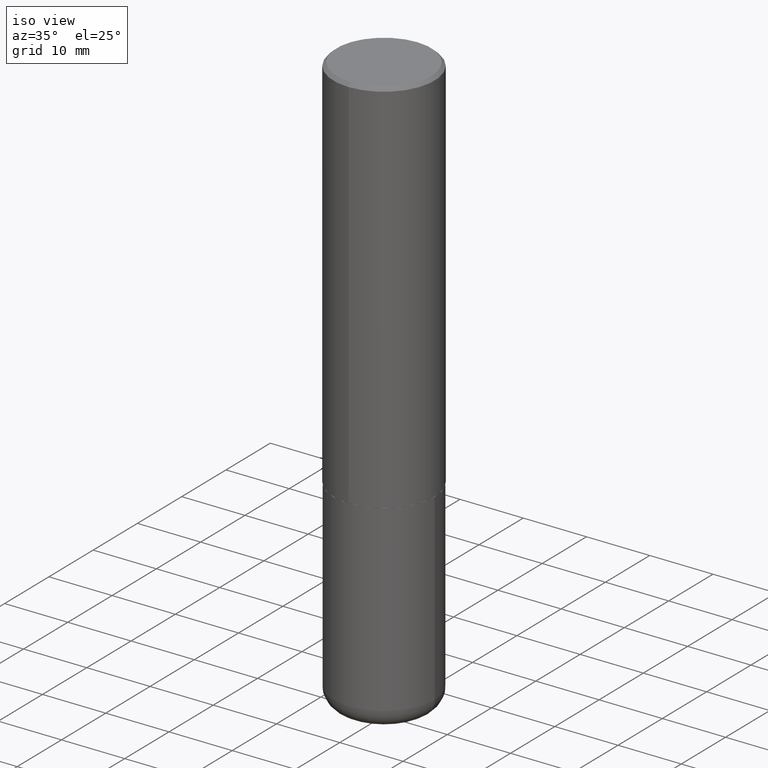
[diagram: clean part render]
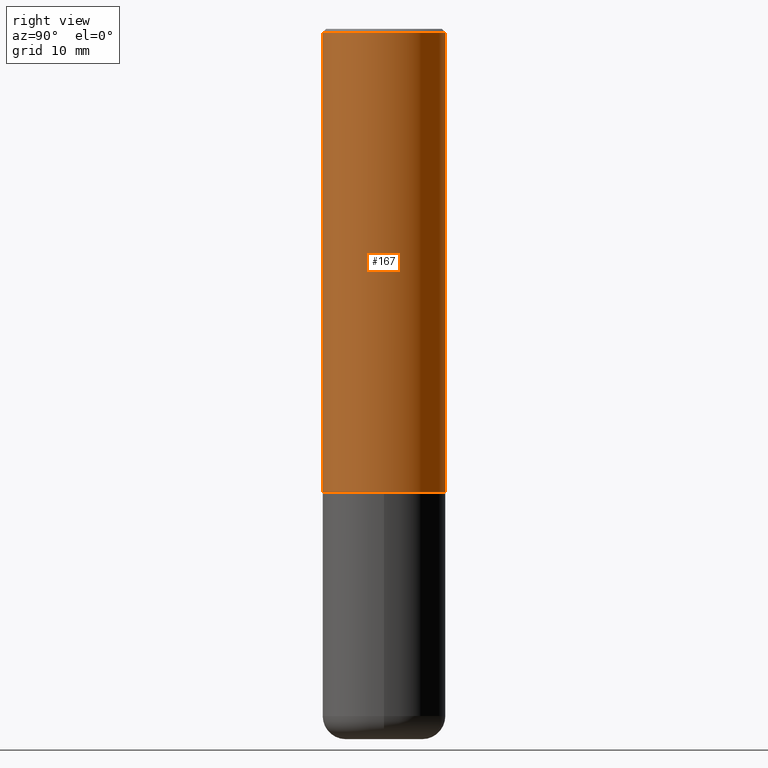
[diagram: tour spotlight — one face highlighted and labeled with its STEP entity id]
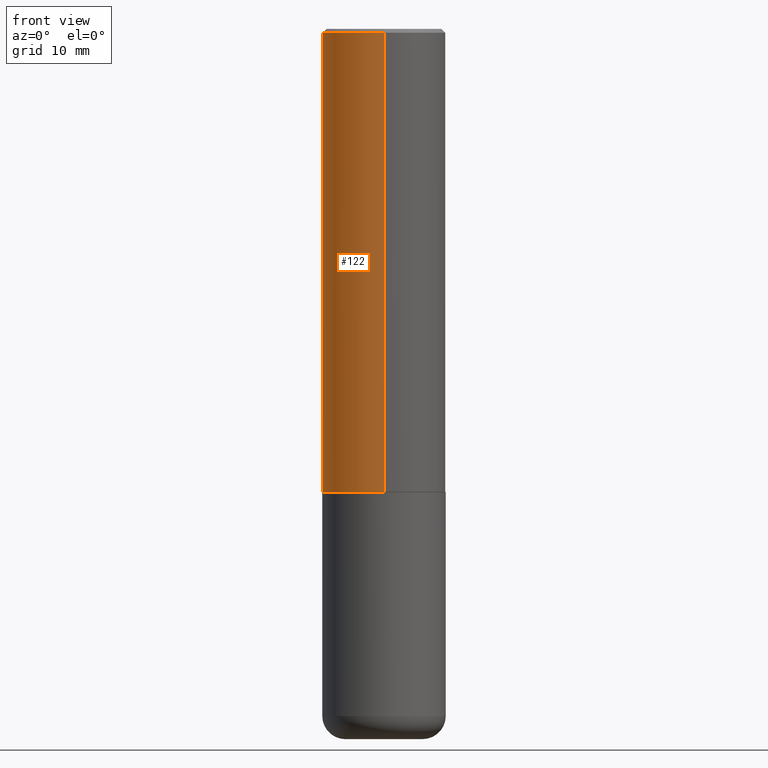
[diagram: tour spotlight — one face highlighted and labeled with its STEP entity id]
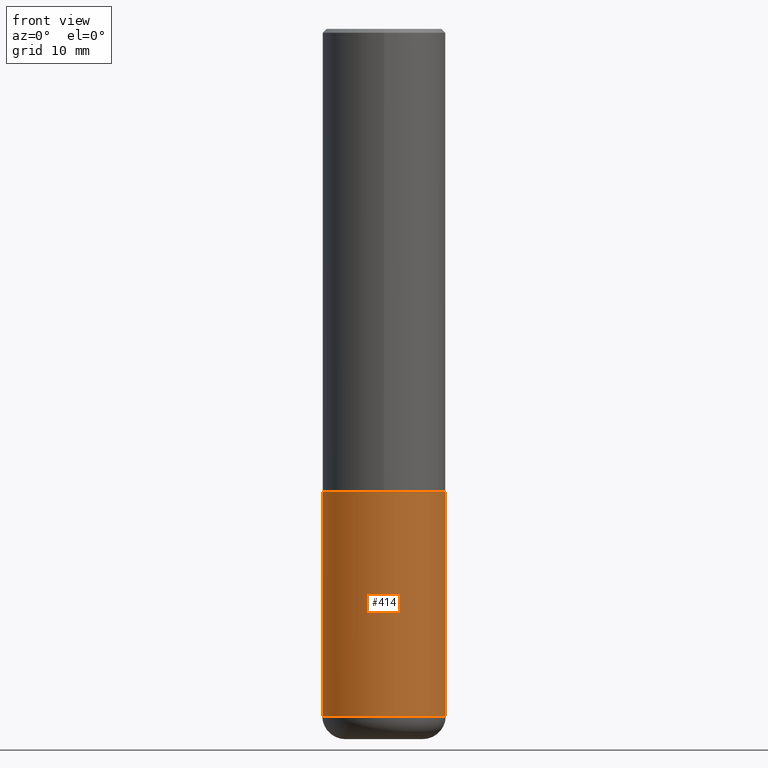
[diagram: tour spotlight — one face highlighted and labeled with its STEP entity id]
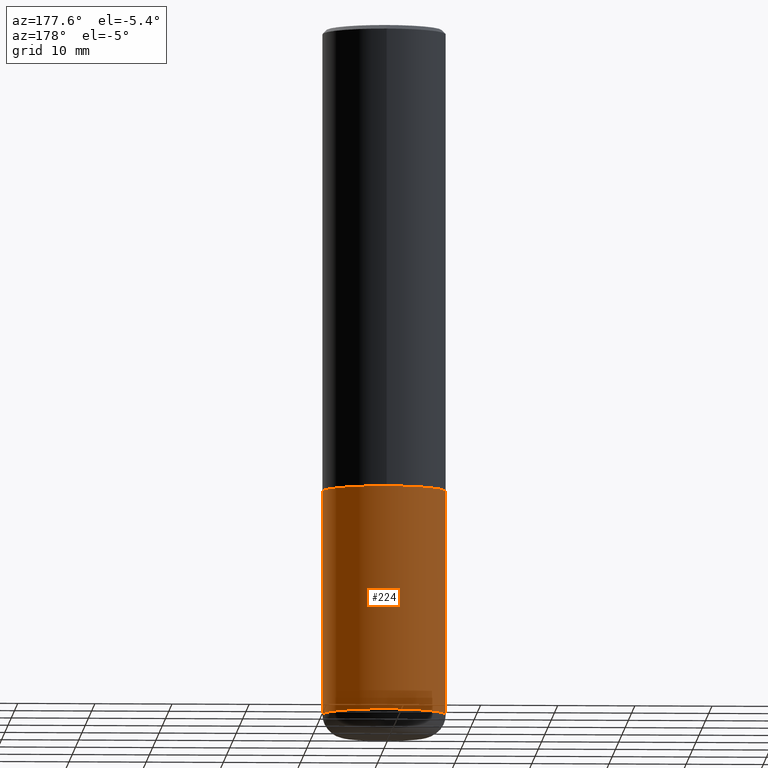
[diagram: tour spotlight — one face highlighted and labeled with its STEP entity id]
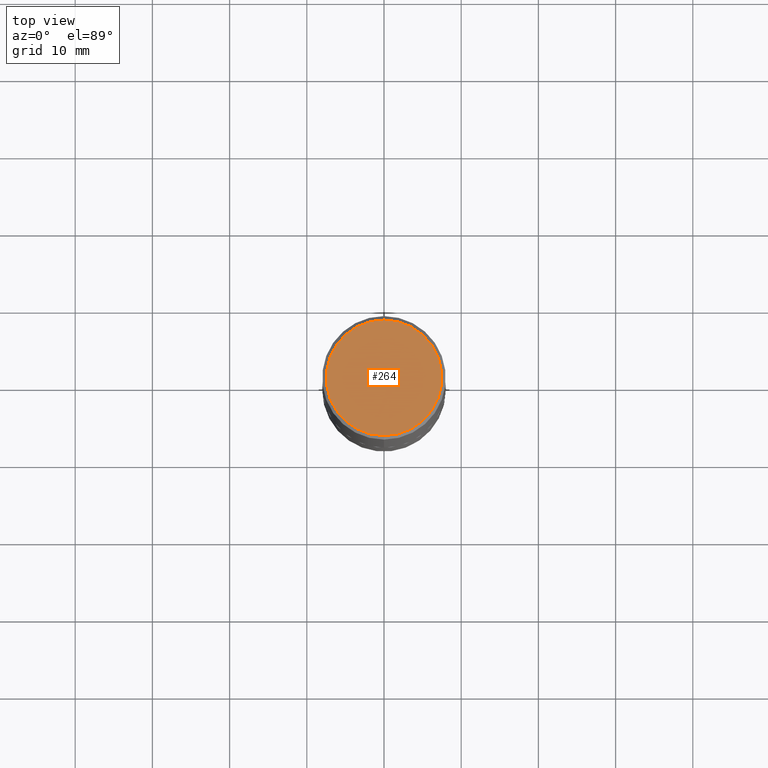
[diagram: tour spotlight — one face highlighted and labeled with its STEP entity id]
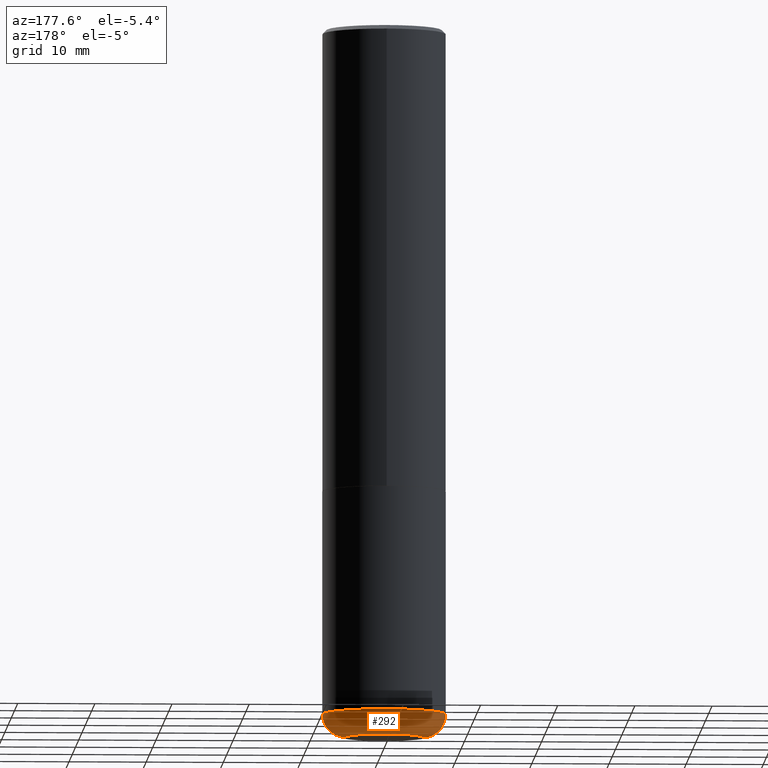
[diagram: tour spotlight — one face highlighted and labeled with its STEP entity id]
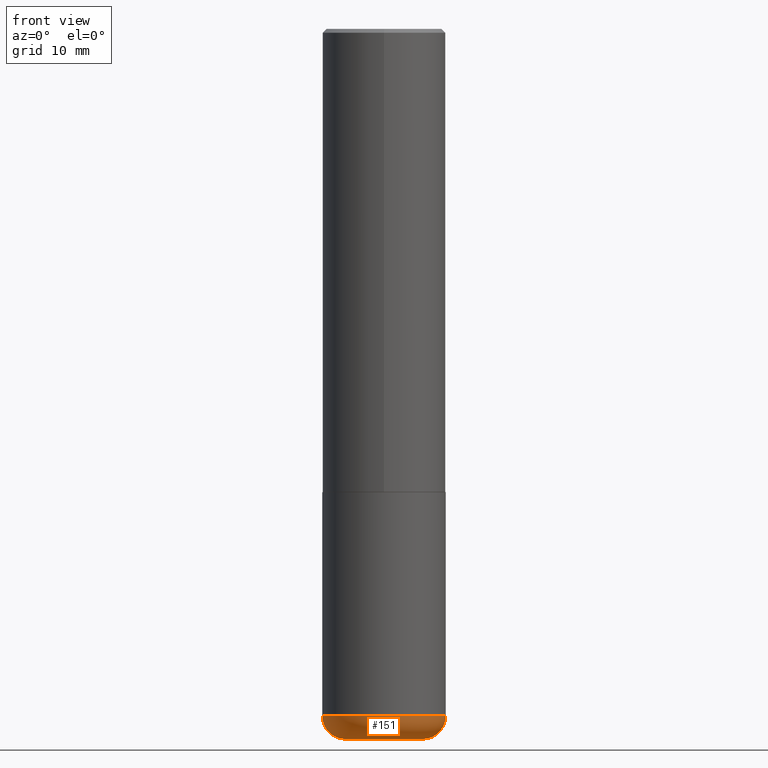
[diagram: tour spotlight — one face highlighted and labeled with its STEP entity id]
A machine part: a face-by-face anatomy tour. The part has 14 B-rep faces; the first image is the clean iso view, then the 7 largest visible faces are spotlighted one at a time (largest first), each with its STEP entity span.

Face 1 — right view, entity #167. In plain terms, the highlighted cylindrical surface (partial cylindrical patch) has radius 7.9997 mm, axis along (-0, 0, 1).
Definition (entity closure, byte-faithful):
#1 = ORIENTED_EDGE ( 'NONE', *, *, #219, .T. ) ;
#5 = DIRECTION ( 'NONE',  ( -2.446834136232167657E-29, 3.489526108506037109E-15, 1.000000000000000000 ) ) ;
#29 = EDGE_LOOP ( 'NONE', ( #1, #327, #72, #163 ) ) ;
#39 = VECTOR ( 'NONE', #5, 39.37007874015748143 ) ;
#42 = DIRECTION ( 'NONE',  ( -2.446834136232167657E-29, 3.489526108506037109E-15, 1.000000000000000000 ) ) ;
#46 = DIRECTION ( 'NONE',  ( -6.982962677686265922E-15, -1.000000000000000000, 3.469564049740290009E-15 ) ) ;
#47 = EDGE_CURVE ( 'NONE', #299, #357, #418, .T. ) ;
#48 = LINE ( 'NONE', #138, #134 ) ;
#61 = CARTESIAN_POINT ( 'NONE',  ( 2.237854346276465567E-15, 0.3149499999999920141, -2.361200000000000632 ) ) ;
#72 = ORIENTED_EDGE ( 'NONE', *, *, #47, .F. ) ;
#82 = AXIS2_PLACEMENT_3D ( 'NONE', #377, #256, #404 ) ;
#88 = CYLINDRICAL_SURFACE ( 'NONE', #276, 0.3149500000000001743 ) ;
#93 = CARTESIAN_POINT ( 'NONE',  ( 0.000000000000000000, 0.000000000000000000, 0.000000000000000000 ) ) ;
#134 = VECTOR ( 'NONE', #42, 39.37007874015748143 ) ;
#138 = CARTESIAN_POINT ( 'NONE',  ( -2.199284095337290265E-15, -0.3149500000000001743, 1.099026247873976983E-15 ) ) ;
#156 = CARTESIAN_POINT ( 'NONE',  ( 2.199284095337289871E-15, 0.3149499999999999522, -0.02000000000000116615 ) ) ;
#163 = ORIENTED_EDGE ( 'NONE', *, *, #205, .F. ) ;
#167 = ADVANCED_FACE ( 'NONE', ( #265 ), #88, .T. ) ;
#173 = VERTEX_POINT ( 'NONE', #61 ) ;
#185 = LINE ( 'NONE', #310, #39 ) ;
#205 = EDGE_CURVE ( 'NONE', #268, #299, #48, .T. ) ;
#219 = EDGE_CURVE ( 'NONE', #268, #173, #262, .T. ) ;
#222 = CARTESIAN_POINT ( 'NONE',  ( -2.199284095337233467E-15, -0.3149500000000085564, -2.361199999999998411 ) ) ;
#236 = DIRECTION ( 'NONE',  ( -2.446834136232167376E-29, 3.489526108506037109E-15, 1.000000000000000000 ) ) ;
#256 = DIRECTION ( 'NONE',  ( -2.446834136232167376E-29, 3.489526108506037109E-15, 1.000000000000000000 ) ) ;
#257 = CARTESIAN_POINT ( 'NONE',  ( -2.160713844398143363E-15, -0.3149500000000000632, -0.01999999999999896999 ) ) ;
#262 = CIRCLE ( 'NONE', #380, 0.3149500000000002853 ) ;
#265 = FACE_OUTER_BOUND ( 'NONE', #29, .T. ) ;
#268 = VERTEX_POINT ( 'NONE', #222 ) ;
#272 = EDGE_CURVE ( 'NONE', #173, #357, #185, .T. ) ;
#276 = AXIS2_PLACEMENT_3D ( 'NONE', #93, #236, #352 ) ;
#299 = VERTEX_POINT ( 'NONE', #257 ) ;
#308 = CARTESIAN_POINT ( 'NONE',  ( 5.777464762471393692E-29, -8.239469047404454280E-15, -2.361199999999999743 ) ) ;
#309 = DIRECTION ( 'NONE',  ( -2.446834136232167376E-29, 3.489526108506037109E-15, 1.000000000000000000 ) ) ;
#310 = CARTESIAN_POINT ( 'NONE',  ( 2.237854346276435985E-15, 0.3149500000000001743, -1.099026247873976983E-15 ) ) ;
#327 = ORIENTED_EDGE ( 'NONE', *, *, #272, .T. ) ;
#352 = DIRECTION ( 'NONE',  ( -6.982962677686264344E-15, -1.000000000000000000, 3.489526108506037109E-15 ) ) ;
#357 = VERTEX_POINT ( 'NONE', #156 ) ;
#377 = CARTESIAN_POINT ( 'NONE',  ( 4.893668272464352339E-31, -6.979052217012096355E-17, -0.02000000000000006981 ) ) ;
#380 = AXIS2_PLACEMENT_3D ( 'NONE', #308, #309, #46 ) ;
#404 = DIRECTION ( 'NONE',  ( -6.982962677686265922E-15, -1.000000000000000000, 3.483117034309591132E-15 ) ) ;
#418 = CIRCLE ( 'NONE', #82, 0.3149500000000000077 ) ;

Face 2 — front view, entity #122. In plain terms, the highlighted cylindrical surface (partial cylindrical patch) has radius 7.9997 mm, axis along (-0, 0, 1).
Definition (entity closure, byte-faithful):
#5 = DIRECTION ( 'NONE',  ( -2.446834136232167657E-29, 3.489526108506037109E-15, 1.000000000000000000 ) ) ;
#39 = VECTOR ( 'NONE', #5, 39.37007874015748143 ) ;
#42 = DIRECTION ( 'NONE',  ( -2.446834136232167657E-29, 3.489526108506037109E-15, 1.000000000000000000 ) ) ;
#48 = LINE ( 'NONE', #138, #134 ) ;
#61 = CARTESIAN_POINT ( 'NONE',  ( 2.237854346276465567E-15, 0.3149499999999920141, -2.361200000000000632 ) ) ;
#70 = ORIENTED_EDGE ( 'NONE', *, *, #394, .F. ) ;
#84 = CIRCLE ( 'NONE', #149, 0.3149500000000000077 ) ;
#108 = ORIENTED_EDGE ( 'NONE', *, *, #205, .T. ) ;
#121 = FACE_OUTER_BOUND ( 'NONE', #139, .T. ) ;
#122 = ADVANCED_FACE ( 'NONE', ( #121 ), #326, .T. ) ;
#134 = VECTOR ( 'NONE', #42, 39.37007874015748143 ) ;
#138 = CARTESIAN_POINT ( 'NONE',  ( -2.199284095337290265E-15, -0.3149500000000001743, 1.099026247873976983E-15 ) ) ;
#139 = EDGE_LOOP ( 'NONE', ( #353, #385, #108, #70 ) ) ;
#149 = AXIS2_PLACEMENT_3D ( 'NONE', #358, #356, #410 ) ;
#156 = CARTESIAN_POINT ( 'NONE',  ( 2.199284095337289871E-15, 0.3149499999999999522, -0.02000000000000116615 ) ) ;
#169 = DIRECTION ( 'NONE',  ( -6.982962677686265922E-15, -1.000000000000000000, 3.469564049740290009E-15 ) ) ;
#172 = AXIS2_PLACEMENT_3D ( 'NONE', #239, #270, #169 ) ;
#173 = VERTEX_POINT ( 'NONE', #61 ) ;
#185 = LINE ( 'NONE', #310, #39 ) ;
#205 = EDGE_CURVE ( 'NONE', #268, #299, #48, .T. ) ;
#222 = CARTESIAN_POINT ( 'NONE',  ( -2.199284095337233467E-15, -0.3149500000000085564, -2.361199999999998411 ) ) ;
#239 = CARTESIAN_POINT ( 'NONE',  ( 5.777464762471393692E-29, -8.239469047404454280E-15, -2.361199999999999743 ) ) ;
#241 = AXIS2_PLACEMENT_3D ( 'NONE', #260, #371, #285 ) ;
#257 = CARTESIAN_POINT ( 'NONE',  ( -2.160713844398143363E-15, -0.3149500000000000632, -0.01999999999999896999 ) ) ;
#260 = CARTESIAN_POINT ( 'NONE',  ( 0.000000000000000000, 0.000000000000000000, 0.000000000000000000 ) ) ;
#268 = VERTEX_POINT ( 'NONE', #222 ) ;
#270 = DIRECTION ( 'NONE',  ( -2.446834136232167376E-29, 3.489526108506037109E-15, 1.000000000000000000 ) ) ;
#272 = EDGE_CURVE ( 'NONE', #173, #357, #185, .T. ) ;
#285 = DIRECTION ( 'NONE',  ( -6.982962677686264344E-15, -1.000000000000000000, 3.489526108506037109E-15 ) ) ;
#299 = VERTEX_POINT ( 'NONE', #257 ) ;
#307 = CIRCLE ( 'NONE', #172, 0.3149500000000002853 ) ;
#310 = CARTESIAN_POINT ( 'NONE',  ( 2.237854346276435985E-15, 0.3149500000000001743, -1.099026247873976983E-15 ) ) ;
#326 = CYLINDRICAL_SURFACE ( 'NONE', #241, 0.3149500000000001743 ) ;
#353 = ORIENTED_EDGE ( 'NONE', *, *, #272, .F. ) ;
#356 = DIRECTION ( 'NONE',  ( -2.446834136232167376E-29, 3.489526108506037109E-15, 1.000000000000000000 ) ) ;
#357 = VERTEX_POINT ( 'NONE', #156 ) ;
#358 = CARTESIAN_POINT ( 'NONE',  ( 4.893668272464352339E-31, -6.979052217012096355E-17, -0.02000000000000006981 ) ) ;
#371 = DIRECTION ( 'NONE',  ( -2.446834136232167376E-29, 3.489526108506037109E-15, 1.000000000000000000 ) ) ;
#385 = ORIENTED_EDGE ( 'NONE', *, *, #407, .T. ) ;
#394 = EDGE_CURVE ( 'NONE', #357, #299, #84, .T. ) ;
#407 = EDGE_CURVE ( 'NONE', #173, #268, #307, .T. ) ;
#410 = DIRECTION ( 'NONE',  ( -6.982962677686265922E-15, -1.000000000000000000, 3.483117034309591132E-15 ) ) ;

Face 3 — front view, entity #414. In plain terms, the highlighted cylindrical surface (partial cylindrical patch) has radius 7.9997 mm, axis along (-0, 0, 1).
Definition (entity closure, byte-faithful):
#11 = DIRECTION ( 'NONE',  ( -2.445468806185136597E-29, 3.491481338843145583E-15, 1.000000000000000000 ) ) ;
#17 = CARTESIAN_POINT ( 'NONE',  ( 5.776686413970529753E-29, -8.247577218615278049E-15, -2.362199999999999633 ) ) ;
#22 = DIRECTION ( 'NONE',  ( 1.000000000000000000, -6.982962677686266711E-15, 0.000000000000000000 ) ) ;
#33 = EDGE_LOOP ( 'NONE', ( #305, #381, #383, #273 ) ) ;
#38 = EDGE_CURVE ( 'NONE', #206, #243, #204, .T. ) ;
#40 = CIRCLE ( 'NONE', #113, 0.3149500000000000077 ) ;
#49 = VECTOR ( 'NONE', #57, 39.37007874015748143 ) ;
#55 = VERTEX_POINT ( 'NONE', #81 ) ;
#57 = DIRECTION ( 'NONE',  ( -2.445468806185136877E-29, 3.491481338843145188E-15, 1.000000000000000000 ) ) ;
#80 = EDGE_CURVE ( 'NONE', #243, #142, #157, .T. ) ;
#81 = CARTESIAN_POINT ( 'NONE',  ( 0.3149499999999998967, -1.443308555850978615E-14, -3.503899999999999793 ) ) ;
#99 = FACE_OUTER_BOUND ( 'NONE', #33, .T. ) ;
#106 = AXIS2_PLACEMENT_3D ( 'NONE', #354, #176, #245 ) ;
#113 = AXIS2_PLACEMENT_3D ( 'NONE', #409, #348, #128 ) ;
#116 = LINE ( 'NONE', #252, #199 ) ;
#124 = CARTESIAN_POINT ( 'NONE',  ( 0.3149500000000000077, -1.044686131395256792E-14, -2.362199999999999633 ) ) ;
#128 = DIRECTION ( 'NONE',  ( 1.000000000000000000, -6.982962677686263555E-15, 0.000000000000000000 ) ) ;
#142 = VERTEX_POINT ( 'NONE', #124 ) ;
#143 = CARTESIAN_POINT ( 'NONE',  ( -0.3149500000000000077, 2.237854346276435590E-15, -1.549218606675782676E-29 ) ) ;
#157 = CIRCLE ( 'NONE', #179, 0.3149500000000000077 ) ;
#176 = DIRECTION ( 'NONE',  ( -2.445468806185136597E-29, 3.491481338843145583E-15, 1.000000000000000000 ) ) ;
#179 = AXIS2_PLACEMENT_3D ( 'NONE', #17, #11, #22 ) ;
#199 = VECTOR ( 'NONE', #368, 39.37007874015748143 ) ;
#204 = LINE ( 'NONE', #143, #49 ) ;
#206 = VERTEX_POINT ( 'NONE', #390 ) ;
#210 = CYLINDRICAL_SURFACE ( 'NONE', #106, 0.3149500000000000077 ) ;
#243 = VERTEX_POINT ( 'NONE', #364 ) ;
#245 = DIRECTION ( 'NONE',  ( 1.000000000000000000, -6.982962677686266711E-15, 4.876176775795936353E-29 ) ) ;
#252 = CARTESIAN_POINT ( 'NONE',  ( 0.3149500000000000077, -2.199284095337289871E-15, 1.535751875536930130E-29 ) ) ;
#266 = EDGE_CURVE ( 'NONE', #55, #142, #116, .T. ) ;
#273 = ORIENTED_EDGE ( 'NONE', *, *, #80, .F. ) ;
#305 = ORIENTED_EDGE ( 'NONE', *, *, #38, .F. ) ;
#348 = DIRECTION ( 'NONE',  ( -2.445468806185136597E-29, 3.491481338843145583E-15, 1.000000000000000000 ) ) ;
#354 = CARTESIAN_POINT ( 'NONE',  ( 0.000000000000000000, 0.000000000000000000, 0.000000000000000000 ) ) ;
#364 = CARTESIAN_POINT ( 'NONE',  ( -0.3149500000000000077, -8.002834994617451969E-15, -2.362199999999999633 ) ) ;
#368 = DIRECTION ( 'NONE',  ( -2.445468806185136877E-29, 3.491481338843145188E-15, 1.000000000000000000 ) ) ;
#381 = ORIENTED_EDGE ( 'NONE', *, *, #386, .T. ) ;
#383 = ORIENTED_EDGE ( 'NONE', *, *, #266, .T. ) ;
#386 = EDGE_CURVE ( 'NONE', #206, #55, #40, .T. ) ;
#390 = CARTESIAN_POINT ( 'NONE',  ( -0.3149499999999998967, -9.995947116896063452E-15, -3.503899999999999793 ) ) ;
#409 = CARTESIAN_POINT ( 'NONE',  ( 8.568678149992099474E-29, -1.223380146317249786E-14, -3.503899999999999793 ) ) ;
#414 = ADVANCED_FACE ( 'NONE', ( #99 ), #210, .T. ) ;

Face 4 — auxiliary view, entity #224. In plain terms, the highlighted cylindrical surface (partial cylindrical patch) has radius 7.9997 mm, axis along (-0, 0, 1).
Definition (entity closure, byte-faithful):
#4 = FACE_OUTER_BOUND ( 'NONE', #171, .T. ) ;
#15 = DIRECTION ( 'NONE',  ( 1.000000000000000000, -6.982962677686266711E-15, 0.000000000000000000 ) ) ;
#38 = EDGE_CURVE ( 'NONE', #206, #243, #204, .T. ) ;
#49 = VECTOR ( 'NONE', #57, 39.37007874015748143 ) ;
#50 = CARTESIAN_POINT ( 'NONE',  ( 5.776686413970529753E-29, -8.247577218615278049E-15, -2.362199999999999633 ) ) ;
#55 = VERTEX_POINT ( 'NONE', #81 ) ;
#57 = DIRECTION ( 'NONE',  ( -2.445468806185136877E-29, 3.491481338843145188E-15, 1.000000000000000000 ) ) ;
#59 = CIRCLE ( 'NONE', #94, 0.3149500000000000077 ) ;
#60 = CIRCLE ( 'NONE', #412, 0.3149500000000000077 ) ;
#81 = CARTESIAN_POINT ( 'NONE',  ( 0.3149499999999998967, -1.443308555850978615E-14, -3.503899999999999793 ) ) ;
#94 = AXIS2_PLACEMENT_3D ( 'NONE', #146, #281, #324 ) ;
#105 = AXIS2_PLACEMENT_3D ( 'NONE', #140, #278, #391 ) ;
#109 = ORIENTED_EDGE ( 'NONE', *, *, #344, .F. ) ;
#116 = LINE ( 'NONE', #252, #199 ) ;
#124 = CARTESIAN_POINT ( 'NONE',  ( 0.3149500000000000077, -1.044686131395256792E-14, -2.362199999999999633 ) ) ;
#140 = CARTESIAN_POINT ( 'NONE',  ( 0.000000000000000000, 0.000000000000000000, 0.000000000000000000 ) ) ;
#142 = VERTEX_POINT ( 'NONE', #124 ) ;
#143 = CARTESIAN_POINT ( 'NONE',  ( -0.3149500000000000077, 2.237854346276435590E-15, -1.549218606675782676E-29 ) ) ;
#146 = CARTESIAN_POINT ( 'NONE',  ( 8.568678149992099474E-29, -1.223380146317249786E-14, -3.503899999999999793 ) ) ;
#171 = EDGE_LOOP ( 'NONE', ( #231, #321, #109, #240 ) ) ;
#191 = DIRECTION ( 'NONE',  ( -2.445468806185136597E-29, 3.491481338843145583E-15, 1.000000000000000000 ) ) ;
#199 = VECTOR ( 'NONE', #368, 39.37007874015748143 ) ;
#204 = LINE ( 'NONE', #143, #49 ) ;
#206 = VERTEX_POINT ( 'NONE', #390 ) ;
#224 = ADVANCED_FACE ( 'NONE', ( #4 ), #249, .T. ) ;
#231 = ORIENTED_EDGE ( 'NONE', *, *, #275, .T. ) ;
#240 = ORIENTED_EDGE ( 'NONE', *, *, #266, .F. ) ;
#243 = VERTEX_POINT ( 'NONE', #364 ) ;
#249 = CYLINDRICAL_SURFACE ( 'NONE', #105, 0.3149500000000000077 ) ;
#252 = CARTESIAN_POINT ( 'NONE',  ( 0.3149500000000000077, -2.199284095337289871E-15, 1.535751875536930130E-29 ) ) ;
#266 = EDGE_CURVE ( 'NONE', #55, #142, #116, .T. ) ;
#275 = EDGE_CURVE ( 'NONE', #55, #206, #59, .T. ) ;
#278 = DIRECTION ( 'NONE',  ( -2.445468806185136597E-29, 3.491481338843145583E-15, 1.000000000000000000 ) ) ;
#281 = DIRECTION ( 'NONE',  ( -2.445468806185136597E-29, 3.491481338843145583E-15, 1.000000000000000000 ) ) ;
#321 = ORIENTED_EDGE ( 'NONE', *, *, #38, .T. ) ;
#324 = DIRECTION ( 'NONE',  ( 1.000000000000000000, -6.982962677686263555E-15, 0.000000000000000000 ) ) ;
#344 = EDGE_CURVE ( 'NONE', #142, #243, #60, .T. ) ;
#364 = CARTESIAN_POINT ( 'NONE',  ( -0.3149500000000000077, -8.002834994617451969E-15, -2.362199999999999633 ) ) ;
#368 = DIRECTION ( 'NONE',  ( -2.445468806185136877E-29, 3.491481338843145188E-15, 1.000000000000000000 ) ) ;
#390 = CARTESIAN_POINT ( 'NONE',  ( -0.3149499999999998967, -9.995947116896063452E-15, -3.503899999999999793 ) ) ;
#391 = DIRECTION ( 'NONE',  ( 1.000000000000000000, -6.982962677686266711E-15, 4.876176775795936353E-29 ) ) ;
#412 = AXIS2_PLACEMENT_3D ( 'NONE', #50, #191, #15 ) ;

Face 5 — top view, entity #264. In plain terms, the highlighted planar face has unit normal (0, -0, -1).
Definition (entity closure, byte-faithful):
#19 = AXIS2_PLACEMENT_3D ( 'NONE', #115, #251, #396 ) ;
#26 = DIRECTION ( 'NONE',  ( -6.982962677686267499E-15, -1.000000000000000000, 3.489526108506037503E-15 ) ) ;
#65 = CARTESIAN_POINT ( 'NONE',  ( -2.092108864420428031E-15, -0.2949499999999999345, 1.067075642926828942E-15 ) ) ;
#89 = ORIENTED_EDGE ( 'NONE', *, *, #183, .T. ) ;
#104 = EDGE_LOOP ( 'NONE', ( #360, #89 ) ) ;
#111 = CARTESIAN_POINT ( 'NONE',  ( 2.129454468560426967E-15, 0.2949499999999999345, -9.913958084808819386E-16 ) ) ;
#112 = AXIS2_PLACEMENT_3D ( 'NONE', #400, #258, #26 ) ;
#115 = CARTESIAN_POINT ( 'NONE',  ( 2.059624841783564063E-15, 0.2949499999999999345, -1.010315767092368542E-15 ) ) ;
#144 = FACE_OUTER_BOUND ( 'NONE', #104, .T. ) ;
#147 = CIRCLE ( 'NONE', #220, 0.2949499999999999345 ) ;
#183 = EDGE_CURVE ( 'NONE', #416, #215, #147, .T. ) ;
#187 = EDGE_CURVE ( 'NONE', #215, #416, #362, .T. ) ;
#209 = CARTESIAN_POINT ( 'NONE',  ( -9.258800117337119194E-46, 1.320433790932734238E-31, 3.783991722297353878E-17 ) ) ;
#215 = VERTEX_POINT ( 'NONE', #111 ) ;
#220 = AXIS2_PLACEMENT_3D ( 'NONE', #209, #363, #227 ) ;
#227 = DIRECTION ( 'NONE',  ( -6.982962677686267499E-15, -1.000000000000000000, 3.489526108506037503E-15 ) ) ;
#251 = DIRECTION ( 'NONE',  ( 2.446834136232167096E-29, -3.489526108506037109E-15, -1.000000000000000000 ) ) ;
#258 = DIRECTION ( 'NONE',  ( -2.446834136232167376E-29, 3.489526108506037109E-15, 1.000000000000000000 ) ) ;
#264 = ADVANCED_FACE ( 'NONE', ( #144 ), #393, .F. ) ;
#360 = ORIENTED_EDGE ( 'NONE', *, *, #187, .T. ) ;
#362 = CIRCLE ( 'NONE', #112, 0.2949499999999999345 ) ;
#363 = DIRECTION ( 'NONE',  ( -2.446834136232167376E-29, 3.489526108506037109E-15, 1.000000000000000000 ) ) ;
#393 = PLANE ( 'NONE',  #19 ) ;
#396 = DIRECTION ( 'NONE',  ( 6.982962677686265922E-15, 1.000000000000000000, -3.489526108506037109E-15 ) ) ;
#400 = CARTESIAN_POINT ( 'NONE',  ( -9.258800117337119194E-46, 1.320433790932734238E-31, 3.783991722297353878E-17 ) ) ;
#416 = VERTEX_POINT ( 'NONE', #65 ) ;

Face 6 — auxiliary view, entity #292. In plain terms, the highlighted toroidal blend (fillet) surface has major radius 5 mm and minor (blend) radius 2.9997 mm.
Definition (entity closure, byte-faithful):
#14 = DIRECTION ( 'NONE',  ( 1.000000000000000000, -6.982962677686273021E-15, 0.000000000000000000 ) ) ;
#18 = CARTESIAN_POINT ( 'NONE',  ( 8.568678149992099474E-29, -1.223380146317249786E-14, -3.503899999999999793 ) ) ;
#31 = CARTESIAN_POINT ( 'NONE',  ( 0.1968500000000000250, -1.402074161239241202E-14, -3.621999999999999442 ) ) ;
#55 = VERTEX_POINT ( 'NONE', #81 ) ;
#59 = CIRCLE ( 'NONE', #94, 0.3149500000000000077 ) ;
#62 = DIRECTION ( 'NONE',  ( -2.445468806185136597E-29, 3.491481338843145583E-15, 1.000000000000000000 ) ) ;
#76 = DIRECTION ( 'NONE',  ( -2.445468806185136597E-29, 3.491481338843145583E-15, 1.000000000000000000 ) ) ;
#81 = CARTESIAN_POINT ( 'NONE',  ( 0.3149499999999998967, -1.443308555850978615E-14, -3.503899999999999793 ) ) ;
#94 = AXIS2_PLACEMENT_3D ( 'NONE', #146, #281, #324 ) ;
#102 = ORIENTED_EDGE ( 'NONE', *, *, #254, .T. ) ;
#114 = CARTESIAN_POINT ( 'NONE',  ( -0.1968500000000000250, -1.083509808782873928E-14, -3.503899999999999793 ) ) ;
#125 = CARTESIAN_POINT ( 'NONE',  ( -0.1968500000000000250, -1.062169457542108764E-14, -3.621999999999999442 ) ) ;
#132 = EDGE_CURVE ( 'NONE', #175, #55, #295, .T. ) ;
#146 = CARTESIAN_POINT ( 'NONE',  ( 8.568678149992099474E-29, -1.223380146317249786E-14, -3.503899999999999793 ) ) ;
#153 = DIRECTION ( 'NONE',  ( 1.000000000000000000, -6.982962677686269866E-15, 4.883557194083114022E-29 ) ) ;
#155 = CARTESIAN_POINT ( 'NONE',  ( 0.1968500000000000250, -1.360839766627503947E-14, -3.503899999999999793 ) ) ;
#160 = DIRECTION ( 'NONE',  ( -6.982962677686266711E-15, -1.000000000000000000, 3.491481338843145583E-15 ) ) ;
#166 = ORIENTED_EDGE ( 'NONE', *, *, #275, .F. ) ;
#175 = VERTEX_POINT ( 'NONE', #31 ) ;
#177 = ORIENTED_EDGE ( 'NONE', *, *, #132, .F. ) ;
#182 = AXIS2_PLACEMENT_3D ( 'NONE', #155, #160, #14 ) ;
#184 = DIRECTION ( 'NONE',  ( -1.000000000000000000, 7.105427357601005014E-15, 0.000000000000000000 ) ) ;
#197 = EDGE_LOOP ( 'NONE', ( #102, #413, #166, #177 ) ) ;
#206 = VERTEX_POINT ( 'NONE', #390 ) ;
#218 = DIRECTION ( 'NONE',  ( 1.000000000000000000, -6.982962677686267499E-15, 0.000000000000000000 ) ) ;
#229 = FACE_OUTER_BOUND ( 'NONE', #197, .T. ) ;
#235 = AXIS2_PLACEMENT_3D ( 'NONE', #280, #76, #218 ) ;
#244 = EDGE_CURVE ( 'NONE', #330, #206, #387, .T. ) ;
#254 = EDGE_CURVE ( 'NONE', #175, #330, #398, .T. ) ;
#275 = EDGE_CURVE ( 'NONE', #55, #206, #59, .T. ) ;
#280 = CARTESIAN_POINT ( 'NONE',  ( 8.857488016002563354E-29, -1.264614540928987041E-14, -3.621999999999999442 ) ) ;
#281 = DIRECTION ( 'NONE',  ( -2.445468806185136597E-29, 3.491481338843145583E-15, 1.000000000000000000 ) ) ;
#282 = AXIS2_PLACEMENT_3D ( 'NONE', #18, #62, #153 ) ;
#292 = ADVANCED_FACE ( 'NONE', ( #229 ), #302, .T. ) ;
#295 = CIRCLE ( 'NONE', #182, 0.1180999999999997191 ) ;
#302 = TOROIDAL_SURFACE ( 'NONE', #282, 0.1968500000000000250, 0.1180999999999997468 ) ;
#324 = DIRECTION ( 'NONE',  ( 1.000000000000000000, -6.982962677686263555E-15, 0.000000000000000000 ) ) ;
#330 = VERTEX_POINT ( 'NONE', #125 ) ;
#365 = DIRECTION ( 'NONE',  ( 7.105427357601001859E-15, 1.000000000000000000, -3.491481338843145583E-15 ) ) ;
#366 = AXIS2_PLACEMENT_3D ( 'NONE', #114, #365, #184 ) ;
#387 = CIRCLE ( 'NONE', #366, 0.1180999999999997191 ) ;
#390 = CARTESIAN_POINT ( 'NONE',  ( -0.3149499999999998967, -9.995947116896063452E-15, -3.503899999999999793 ) ) ;
#398 = CIRCLE ( 'NONE', #235, 0.1968500000000000250 ) ;
#413 = ORIENTED_EDGE ( 'NONE', *, *, #244, .T. ) ;

Face 7 — front view, entity #151. In plain terms, the highlighted toroidal blend (fillet) surface has major radius 5 mm and minor (blend) radius 2.9997 mm.
Definition (entity closure, byte-faithful):
#6 = EDGE_CURVE ( 'NONE', #330, #175, #328, .T. ) ;
#14 = DIRECTION ( 'NONE',  ( 1.000000000000000000, -6.982962677686273021E-15, 0.000000000000000000 ) ) ;
#31 = CARTESIAN_POINT ( 'NONE',  ( 0.1968500000000000250, -1.402074161239241202E-14, -3.621999999999999442 ) ) ;
#37 = ORIENTED_EDGE ( 'NONE', *, *, #132, .T. ) ;
#40 = CIRCLE ( 'NONE', #113, 0.3149500000000000077 ) ;
#41 = DIRECTION ( 'NONE',  ( 1.000000000000000000, -6.982962677686267499E-15, 0.000000000000000000 ) ) ;
#44 = TOROIDAL_SURFACE ( 'NONE', #411, 0.1968500000000000250, 0.1180999999999997468 ) ;
#55 = VERTEX_POINT ( 'NONE', #81 ) ;
#64 = EDGE_LOOP ( 'NONE', ( #355, #170, #37, #296 ) ) ;
#81 = CARTESIAN_POINT ( 'NONE',  ( 0.3149499999999998967, -1.443308555850978615E-14, -3.503899999999999793 ) ) ;
#113 = AXIS2_PLACEMENT_3D ( 'NONE', #409, #348, #128 ) ;
#114 = CARTESIAN_POINT ( 'NONE',  ( -0.1968500000000000250, -1.083509808782873928E-14, -3.503899999999999793 ) ) ;
#117 = AXIS2_PLACEMENT_3D ( 'NONE', #336, #211, #41 ) ;
#125 = CARTESIAN_POINT ( 'NONE',  ( -0.1968500000000000250, -1.062169457542108764E-14, -3.621999999999999442 ) ) ;
#127 = DIRECTION ( 'NONE',  ( 1.000000000000000000, -6.982962677686269866E-15, 4.883557194083114022E-29 ) ) ;
#128 = DIRECTION ( 'NONE',  ( 1.000000000000000000, -6.982962677686263555E-15, 0.000000000000000000 ) ) ;
#132 = EDGE_CURVE ( 'NONE', #175, #55, #295, .T. ) ;
#151 = ADVANCED_FACE ( 'NONE', ( #233 ), #44, .T. ) ;
#155 = CARTESIAN_POINT ( 'NONE',  ( 0.1968500000000000250, -1.360839766627503947E-14, -3.503899999999999793 ) ) ;
#160 = DIRECTION ( 'NONE',  ( -6.982962677686266711E-15, -1.000000000000000000, 3.491481338843145583E-15 ) ) ;
#170 = ORIENTED_EDGE ( 'NONE', *, *, #6, .T. ) ;
#175 = VERTEX_POINT ( 'NONE', #31 ) ;
#182 = AXIS2_PLACEMENT_3D ( 'NONE', #155, #160, #14 ) ;
#184 = DIRECTION ( 'NONE',  ( -1.000000000000000000, 7.105427357601005014E-15, 0.000000000000000000 ) ) ;
#206 = VERTEX_POINT ( 'NONE', #390 ) ;
#211 = DIRECTION ( 'NONE',  ( -2.445468806185136597E-29, 3.491481338843145583E-15, 1.000000000000000000 ) ) ;
#233 = FACE_OUTER_BOUND ( 'NONE', #64, .T. ) ;
#244 = EDGE_CURVE ( 'NONE', #330, #206, #387, .T. ) ;
#295 = CIRCLE ( 'NONE', #182, 0.1180999999999997191 ) ;
#296 = ORIENTED_EDGE ( 'NONE', *, *, #386, .F. ) ;
#328 = CIRCLE ( 'NONE', #117, 0.1968500000000000250 ) ;
#330 = VERTEX_POINT ( 'NONE', #125 ) ;
#336 = CARTESIAN_POINT ( 'NONE',  ( 8.857488016002563354E-29, -1.264614540928987041E-14, -3.621999999999999442 ) ) ;
#347 = CARTESIAN_POINT ( 'NONE',  ( 8.568678149992099474E-29, -1.223380146317249786E-14, -3.503899999999999793 ) ) ;
#348 = DIRECTION ( 'NONE',  ( -2.445468806185136597E-29, 3.491481338843145583E-15, 1.000000000000000000 ) ) ;
#355 = ORIENTED_EDGE ( 'NONE', *, *, #244, .F. ) ;
#365 = DIRECTION ( 'NONE',  ( 7.105427357601001859E-15, 1.000000000000000000, -3.491481338843145583E-15 ) ) ;
#366 = AXIS2_PLACEMENT_3D ( 'NONE', #114, #365, #184 ) ;
#386 = EDGE_CURVE ( 'NONE', #206, #55, #40, .T. ) ;
#387 = CIRCLE ( 'NONE', #366, 0.1180999999999997191 ) ;
#390 = CARTESIAN_POINT ( 'NONE',  ( -0.3149499999999998967, -9.995947116896063452E-15, -3.503899999999999793 ) ) ;
#408 = DIRECTION ( 'NONE',  ( -2.445468806185136597E-29, 3.491481338843145583E-15, 1.000000000000000000 ) ) ;
#409 = CARTESIAN_POINT ( 'NONE',  ( 8.568678149992099474E-29, -1.223380146317249786E-14, -3.503899999999999793 ) ) ;
#411 = AXIS2_PLACEMENT_3D ( 'NONE', #347, #408, #127 ) ;